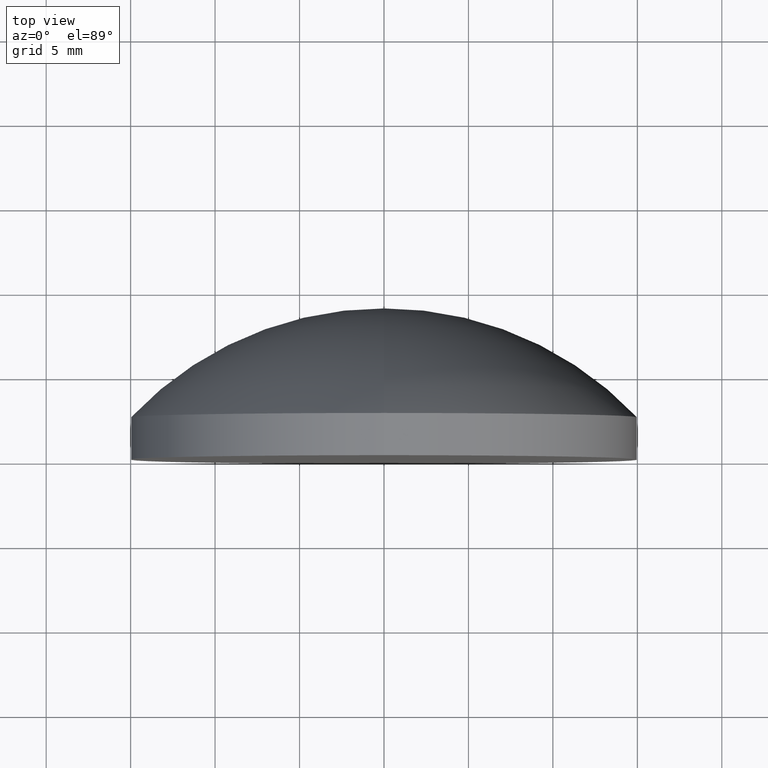
[diagram: clean part render]
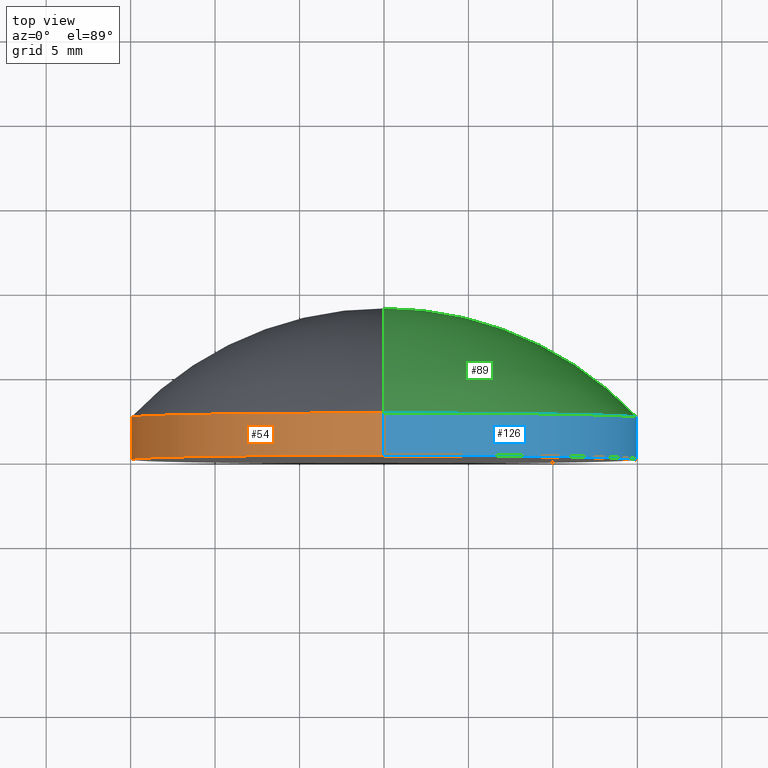
[diagram: same view with three faces highlighted in distinct colors, each labeled with its STEP entity id]
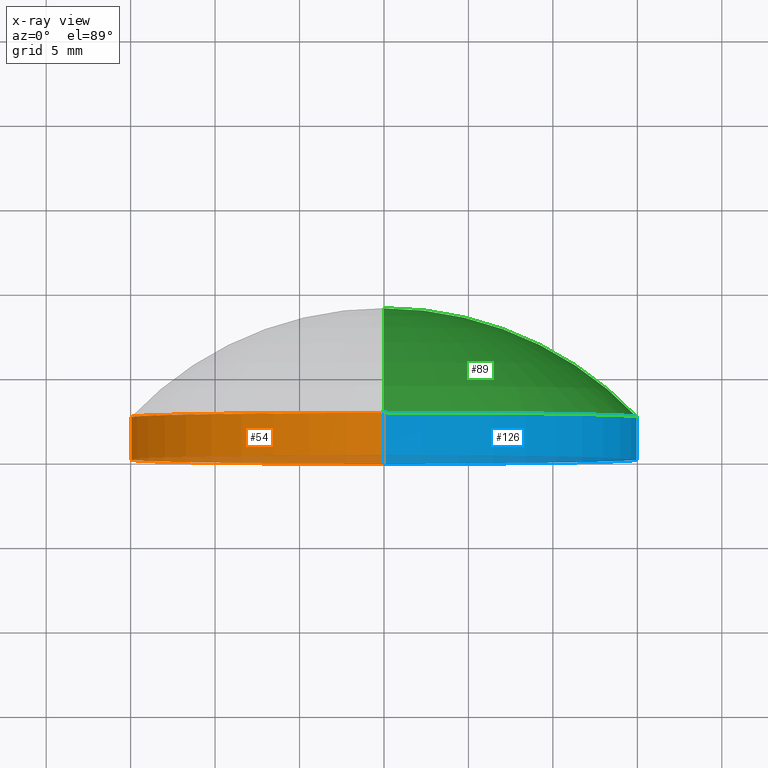
[diagram: x-ray of the same camera — body ghosted, the three highlighted faces saturated]
A machine part, top view with three faces highlighted in distinct colors.
The next image is the same camera in x-ray (body ghosted, the three faces saturated) — at least one of them is partly hidden behind the body in this view.
Their STEP definitions:

[orange] entity #54 — the highlighted cylindrical surface (partial cylindrical patch) has radius 15 mm, axis along (-0, 1, -0).
#9 = VECTOR ( 'NONE', #81, 1000.000000000000000 ) ;
#14 = VERTEX_POINT ( 'NONE', #169 ) ;
#20 = CARTESIAN_POINT ( 'NONE',  ( 0.000000000000000000, -1.734723475976807094E-15, 0.000000000000000000 ) ) ;
#32 = LINE ( 'NONE', #161, #9 ) ;
#39 = AXIS2_PLACEMENT_3D ( 'NONE', #113, #63, #110 ) ;
#45 = ORIENTED_EDGE ( 'NONE', *, *, #154, .T. ) ;
#54 = ADVANCED_FACE ( 'NONE', ( #147 ), #186, .T. ) ;
#55 = AXIS2_PLACEMENT_3D ( 'NONE', #20, #132, #68 ) ;
#56 = EDGE_CURVE ( 'NONE', #75, #14, #32, .T. ) ;
#57 = VECTOR ( 'NONE', #187, 1000.000000000000000 ) ;
#58 = VERTEX_POINT ( 'NONE', #129 ) ;
#63 = DIRECTION ( 'NONE',  ( -0.000000000000000000, 1.000000000000000000, -0.000000000000000000 ) ) ;
#68 = DIRECTION ( 'NONE',  ( 0.000000000000000000, 0.000000000000000000, 1.000000000000000000 ) ) ;
#69 = AXIS2_PLACEMENT_3D ( 'NONE', #135, #85, #164 ) ;
#75 = VERTEX_POINT ( 'NONE', #148 ) ;
#81 = DIRECTION ( 'NONE',  ( -0.000000000000000000, 1.000000000000000000, -0.000000000000000000 ) ) ;
#85 = DIRECTION ( 'NONE',  ( -0.000000000000000000, 1.000000000000000000, -0.000000000000000000 ) ) ;
#94 = VERTEX_POINT ( 'NONE', #130 ) ;
#107 = CIRCLE ( 'NONE', #55, 15.00000000000000000 ) ;
#110 = DIRECTION ( 'NONE',  ( 0.000000000000000000, 0.000000000000000000, 1.000000000000000000 ) ) ;
#113 = CARTESIAN_POINT ( 'NONE',  ( 0.000000000000000000, 8.949999999999999289, 0.000000000000000000 ) ) ;
#118 = CARTESIAN_POINT ( 'NONE',  ( 0.000000000000000000, 8.949999999999999289, 15.00000000000000000 ) ) ;
#127 = ORIENTED_EDGE ( 'NONE', *, *, #199, .T. ) ;
#129 = CARTESIAN_POINT ( 'NONE',  ( 0.000000000000000000, -1.734723475976807094E-15, 15.00000000000000000 ) ) ;
#130 = CARTESIAN_POINT ( 'NONE',  ( 0.000000000000000000, 2.499999999999999556, 14.99999999999999645 ) ) ;
#132 = DIRECTION ( 'NONE',  ( -0.000000000000000000, 1.000000000000000000, -0.000000000000000000 ) ) ;
#135 = CARTESIAN_POINT ( 'NONE',  ( 0.000000000000000000, 2.499999999999998668, 0.000000000000000000 ) ) ;
#147 = FACE_OUTER_BOUND ( 'NONE', #180, .T. ) ;
#148 = CARTESIAN_POINT ( 'NONE',  ( 1.836970198721029589E-15, -1.734723475976807094E-15, -15.00000000000000000 ) ) ;
#154 = EDGE_CURVE ( 'NONE', #58, #94, #172, .T. ) ;
#159 = CIRCLE ( 'NONE', #69, 15.00000000000000000 ) ;
#161 = CARTESIAN_POINT ( 'NONE',  ( 1.836970198721029589E-15, 8.949999999999999289, -15.00000000000000000 ) ) ;
#164 = DIRECTION ( 'NONE',  ( 0.000000000000000000, 0.000000000000000000, 1.000000000000000000 ) ) ;
#169 = CARTESIAN_POINT ( 'NONE',  ( 1.836970198721029194E-15, 2.499999999999999556, -14.99999999999999645 ) ) ;
#172 = LINE ( 'NONE', #118, #57 ) ;
#180 = EDGE_LOOP ( 'NONE', ( #201, #127, #45, #182 ) ) ;
#182 = ORIENTED_EDGE ( 'NONE', *, *, #185, .F. ) ;
#185 = EDGE_CURVE ( 'NONE', #14, #94, #159, .T. ) ;
#186 = CYLINDRICAL_SURFACE ( 'NONE', #39, 15.00000000000000000 ) ;
#187 = DIRECTION ( 'NONE',  ( -0.000000000000000000, 1.000000000000000000, -0.000000000000000000 ) ) ;
#199 = EDGE_CURVE ( 'NONE', #75, #58, #107, .T. ) ;
#201 = ORIENTED_EDGE ( 'NONE', *, *, #56, .F. ) ;

[blue] entity #126 — the highlighted cylindrical surface (partial cylindrical patch) has radius 15 mm, axis along (-0, 1, -0).
#5 = DIRECTION ( 'NONE',  ( 0.000000000000000000, 0.000000000000000000, 1.000000000000000000 ) ) ;
#9 = VECTOR ( 'NONE', #81, 1000.000000000000000 ) ;
#11 = CIRCLE ( 'NONE', #119, 15.00000000000000000 ) ;
#14 = VERTEX_POINT ( 'NONE', #169 ) ;
#17 = CARTESIAN_POINT ( 'NONE',  ( 0.000000000000000000, -1.734723475976807094E-15, 0.000000000000000000 ) ) ;
#23 = EDGE_CURVE ( 'NONE', #94, #14, #93, .T. ) ;
#25 = ORIENTED_EDGE ( 'NONE', *, *, #23, .F. ) ;
#26 = ORIENTED_EDGE ( 'NONE', *, *, #154, .F. ) ;
#30 = AXIS2_PLACEMENT_3D ( 'NONE', #66, #152, #52 ) ;
#32 = LINE ( 'NONE', #161, #9 ) ;
#43 = DIRECTION ( 'NONE',  ( -0.000000000000000000, 1.000000000000000000, -0.000000000000000000 ) ) ;
#52 = DIRECTION ( 'NONE',  ( 0.000000000000000000, 0.000000000000000000, 1.000000000000000000 ) ) ;
#53 = AXIS2_PLACEMENT_3D ( 'NONE', #92, #43, #183 ) ;
#56 = EDGE_CURVE ( 'NONE', #75, #14, #32, .T. ) ;
#57 = VECTOR ( 'NONE', #187, 1000.000000000000000 ) ;
#58 = VERTEX_POINT ( 'NONE', #129 ) ;
#61 = ORIENTED_EDGE ( 'NONE', *, *, #179, .T. ) ;
#66 = CARTESIAN_POINT ( 'NONE',  ( 0.000000000000000000, 8.949999999999999289, 0.000000000000000000 ) ) ;
#75 = VERTEX_POINT ( 'NONE', #148 ) ;
#81 = DIRECTION ( 'NONE',  ( -0.000000000000000000, 1.000000000000000000, -0.000000000000000000 ) ) ;
#92 = CARTESIAN_POINT ( 'NONE',  ( 0.000000000000000000, 2.499999999999998668, 0.000000000000000000 ) ) ;
#93 = CIRCLE ( 'NONE', #53, 15.00000000000000000 ) ;
#94 = VERTEX_POINT ( 'NONE', #130 ) ;
#95 = DIRECTION ( 'NONE',  ( -0.000000000000000000, 1.000000000000000000, -0.000000000000000000 ) ) ;
#100 = CYLINDRICAL_SURFACE ( 'NONE', #30, 15.00000000000000000 ) ;
#106 = ORIENTED_EDGE ( 'NONE', *, *, #56, .T. ) ;
#118 = CARTESIAN_POINT ( 'NONE',  ( 0.000000000000000000, 8.949999999999999289, 15.00000000000000000 ) ) ;
#119 = AXIS2_PLACEMENT_3D ( 'NONE', #17, #95, #5 ) ;
#126 = ADVANCED_FACE ( 'NONE', ( #190 ), #100, .T. ) ;
#129 = CARTESIAN_POINT ( 'NONE',  ( 0.000000000000000000, -1.734723475976807094E-15, 15.00000000000000000 ) ) ;
#130 = CARTESIAN_POINT ( 'NONE',  ( 0.000000000000000000, 2.499999999999999556, 14.99999999999999645 ) ) ;
#148 = CARTESIAN_POINT ( 'NONE',  ( 1.836970198721029589E-15, -1.734723475976807094E-15, -15.00000000000000000 ) ) ;
#152 = DIRECTION ( 'NONE',  ( -0.000000000000000000, 1.000000000000000000, -0.000000000000000000 ) ) ;
#154 = EDGE_CURVE ( 'NONE', #58, #94, #172, .T. ) ;
#160 = EDGE_LOOP ( 'NONE', ( #61, #106, #25, #26 ) ) ;
#161 = CARTESIAN_POINT ( 'NONE',  ( 1.836970198721029589E-15, 8.949999999999999289, -15.00000000000000000 ) ) ;
#169 = CARTESIAN_POINT ( 'NONE',  ( 1.836970198721029194E-15, 2.499999999999999556, -14.99999999999999645 ) ) ;
#172 = LINE ( 'NONE', #118, #57 ) ;
#179 = EDGE_CURVE ( 'NONE', #58, #75, #11, .T. ) ;
#183 = DIRECTION ( 'NONE',  ( 0.000000000000000000, 0.000000000000000000, 1.000000000000000000 ) ) ;
#187 = DIRECTION ( 'NONE',  ( -0.000000000000000000, 1.000000000000000000, -0.000000000000000000 ) ) ;
#190 = FACE_OUTER_BOUND ( 'NONE', #160, .T. ) ;

[green] entity #89 — the highlighted toroidal blend (fillet) surface has major radius 0.0013 mm and minor (blend) radius 20.67 mm.
#2 = ORIENTED_EDGE ( 'NONE', *, *, #139, .F. ) ;
#3 = DIRECTION ( 'NONE',  ( 0.000000000000000000, 0.000000000000000000, 1.000000000000000000 ) ) ;
#14 = VERTEX_POINT ( 'NONE', #169 ) ;
#22 = DIRECTION ( 'NONE',  ( 1.000000000000000000, 0.000000000000000000, 1.224646799147353207E-16 ) ) ;
#23 = EDGE_CURVE ( 'NONE', #94, #14, #93, .T. ) ;
#29 = EDGE_LOOP ( 'NONE', ( #143, #90, #2 ) ) ;
#33 = CARTESIAN_POINT ( 'NONE',  ( 0.000000000000000000, 8.949999999999999289, 0.000000000000000000 ) ) ;
#43 = DIRECTION ( 'NONE',  ( -0.000000000000000000, 1.000000000000000000, -0.000000000000000000 ) ) ;
#50 = CARTESIAN_POINT ( 'NONE',  ( -1.653249964113639859E-19, -11.71999995591560584, 0.001349981043730075214 ) ) ;
#53 = AXIS2_PLACEMENT_3D ( 'NONE', #92, #43, #183 ) ;
#59 = AXIS2_PLACEMENT_3D ( 'NONE', #174, #137, #192 ) ;
#71 = FACE_OUTER_BOUND ( 'NONE', #29, .T. ) ;
#77 = AXIS2_PLACEMENT_3D ( 'NONE', #50, #22, #83 ) ;
#82 = DIRECTION ( 'NONE',  ( -1.000000000000000000, 0.000000000000000000, 0.000000000000000000 ) ) ;
#83 = DIRECTION ( 'NONE',  ( 1.224646799147353207E-16, 0.000000000000000000, -1.000000000000000000 ) ) ;
#89 = ADVANCED_FACE ( 'NONE', ( #71 ), #145, .T. ) ;
#90 = ORIENTED_EDGE ( 'NONE', *, *, #109, .T. ) ;
#92 = CARTESIAN_POINT ( 'NONE',  ( 0.000000000000000000, 2.499999999999998668, 0.000000000000000000 ) ) ;
#93 = CIRCLE ( 'NONE', #53, 15.00000000000000000 ) ;
#94 = VERTEX_POINT ( 'NONE', #130 ) ;
#109 = EDGE_CURVE ( 'NONE', #14, #125, #156, .T. ) ;
#116 = CARTESIAN_POINT ( 'NONE',  ( 0.000000000000000000, -11.71999995591560584, -0.001349981043730075214 ) ) ;
#122 = CIRCLE ( 'NONE', #155, 20.67000000000000526 ) ;
#125 = VERTEX_POINT ( 'NONE', #33 ) ;
#130 = CARTESIAN_POINT ( 'NONE',  ( 0.000000000000000000, 2.499999999999999556, 14.99999999999999645 ) ) ;
#137 = DIRECTION ( 'NONE',  ( -0.000000000000000000, 1.000000000000000000, -0.000000000000000000 ) ) ;
#139 = EDGE_CURVE ( 'NONE', #94, #125, #122, .T. ) ;
#143 = ORIENTED_EDGE ( 'NONE', *, *, #23, .T. ) ;
#145 = TOROIDAL_SURFACE ( 'NONE', #59, -0.001349981043730075214, 20.67000000000000526 ) ;
#155 = AXIS2_PLACEMENT_3D ( 'NONE', #116, #82, #3 ) ;
#156 = CIRCLE ( 'NONE', #77, 20.67000000000000526 ) ;
#169 = CARTESIAN_POINT ( 'NONE',  ( 1.836970198721029194E-15, 2.499999999999999556, -14.99999999999999645 ) ) ;
#174 = CARTESIAN_POINT ( 'NONE',  ( 0.000000000000000000, -11.71999995591560584, 0.000000000000000000 ) ) ;
#183 = DIRECTION ( 'NONE',  ( 0.000000000000000000, 0.000000000000000000, 1.000000000000000000 ) ) ;
#192 = DIRECTION ( 'NONE',  ( 0.000000000000000000, 0.000000000000000000, 1.000000000000000000 ) ) ;